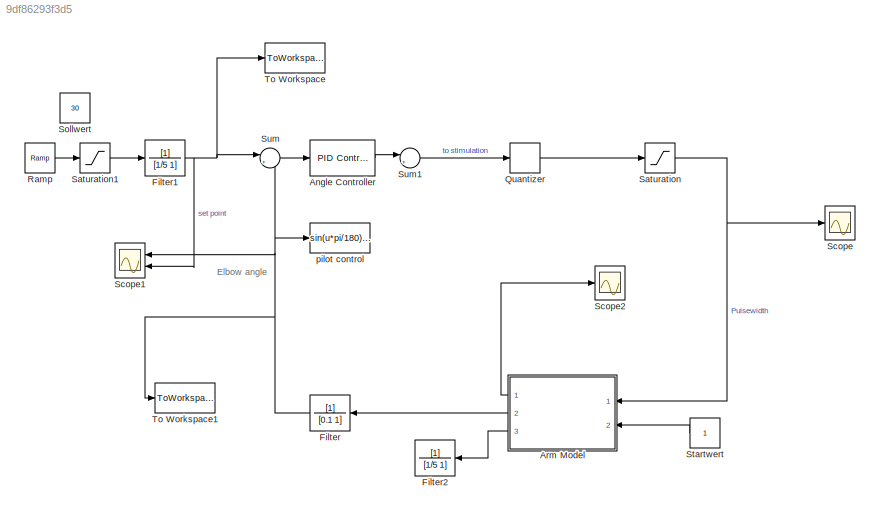
MODEL slx_9df86293f3d5
KIND model
CONFIG AbsTol = auto
CONFIG EnableMultiTasking = off
CONFIG FixedStep = 0.001
CONFIG MaxStep = auto
CONFIG MinStep = 0.0001
CONFIG RelTol = 1e-3
CONFIG SampleTimeConstraint = Unconstrained
CONFIG Solver = ode45
CONFIG SolverName = ode45
CONFIG StartTime = 0.0
CONFIG StopTime = 30
BLOCK [Reference] Angle Controller  REF=simulink/Continuous/PID Controller
  Ports = [1, 1]
  SourceBlock = simulink/Continuous/PID Controller
  SourceType = PID 1dof
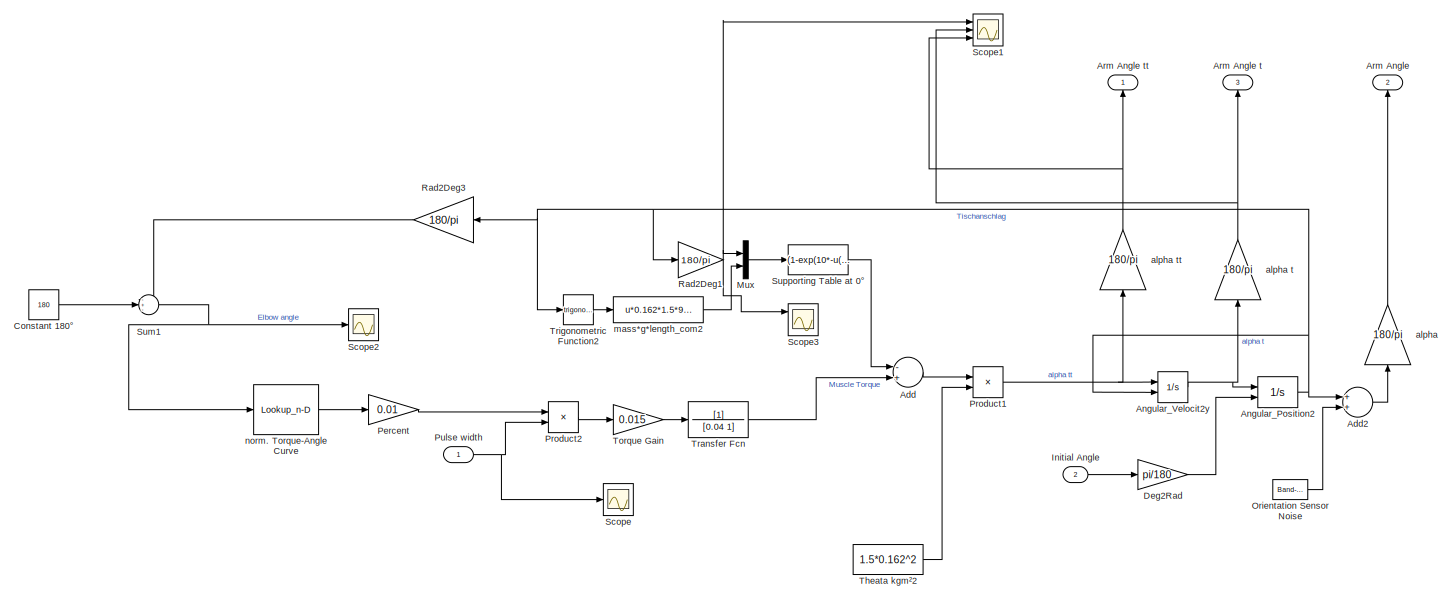
[diagram: Arm Model - part 1/2, full width, top band]
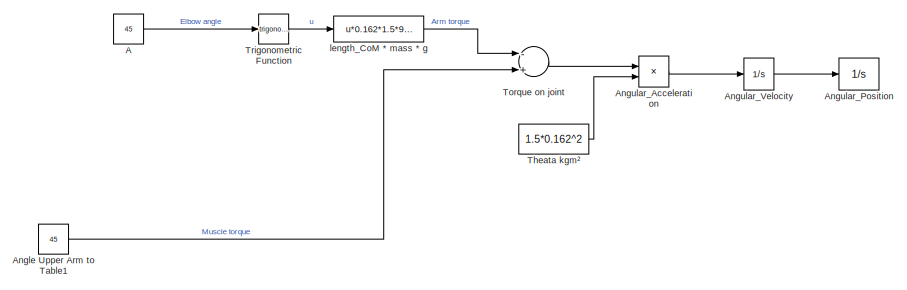
[diagram: Arm Model - part 2/2, bottom center region]
BLOCK [SubSystem] Arm Model
  Ports = [2, 3]
  RequestExecContextInheritance = off
  Variant = off
BLOCK [Constant] Arm Model/A
  Commented = on
  Value = 45
BLOCK [Sum] Arm Model/Add
  InputSameDT = off
  Inputs = -+
  OutDataTypeStr = Inherit: Inherit via internal rule
  Ports = [2, 1]
  SaturateOnIntegerOverflow = off
BLOCK [Sum] Arm Model/Add2
  InputSameDT = off
  OutDataTypeStr = Inherit: Inherit via internal rule
  Ports = [2, 1]
  SaturateOnIntegerOverflow = off
BLOCK [Constant] Arm Model/Angle Upper Arm to Table1
  Commented = on
  Value = 45
BLOCK [Product] Arm Model/Angular_Acceleration
  Commented = on
  InputSameDT = off
  Inputs = */
  OutDataTypeStr = Inherit: Inherit via internal rule
  Ports = [2, 1]
  RndMeth = Floor
  SaturateOnIntegerOverflow = off
BLOCK [Integrator] Arm Model/Angular_Position
  Commented = on
  InitialCondition = 0.5
  LowerSaturationLimit = 0
  Ports = [1, 1]
BLOCK [Integrator] Arm Model/Angular_Position2
  InitialCondition = 45
  InitialConditionSource = external
  LimitOutput = on
  LowerSaturationLimit = 0
  Ports = [2, 1]
  UpperSaturationLimit = 90*pi/180
BLOCK [Integrator] Arm Model/Angular_Velocit2y
  ExternalReset = falling
  Ports = [2, 1]
BLOCK [Integrator] Arm Model/Angular_Velocity
  Commented = on
  Ports = [1, 1]
BLOCK [Outport] Arm Model/Arm Angle
  IconDisplay = Port number
  Port = 2
BLOCK [Outport] Arm Model/Arm Angle t
  IconDisplay = Port number
  Port = 3
BLOCK [Outport] Arm Model/Arm Angle tt
  IconDisplay = Port number
BLOCK [Constant] Arm Model/Constant 180°
  Value = 180
BLOCK [Gain] Arm Model/Deg2Rad
  Gain = pi/180
  OutDataTypeStr = Inherit: Inherit via internal rule
  ParamDataTypeStr = Inherit: Inherit via internal rule
  SaturateOnIntegerOverflow = off
BLOCK [Inport] Arm Model/Initial Angle
  IconDisplay = Port number
  Port = 2
BLOCK [Mux] Arm Model/Mux
  DisplayOption = bar
  Inputs = 2
  Ports = [2, 1]
BLOCK [Reference] Arm Model/Orientation Sensor Noise  REF=simulink/Sources/Band-Limited
White Noise
  Ports = [0, 1]
  SourceBlock = simulink/Sources/Band-Limited\nWhite Noise
  SourceType = Band-Limited White Noise.
BLOCK [Gain] Arm Model/Percent
  Gain = 0.01
  OutDataTypeStr = Inherit: Inherit via internal rule
  ParamDataTypeStr = Inherit: Inherit via internal rule
  SaturateOnIntegerOverflow = off
BLOCK [Product] Arm Model/Product1
  InputSameDT = off
  Inputs = */
  OutDataTypeStr = Inherit: Inherit via internal rule
  Ports = [2, 1]
  RndMeth = Floor
  SaturateOnIntegerOverflow = off
BLOCK [Product] Arm Model/Product2
  InputSameDT = off
  Inputs = **
  OutDataTypeStr = Inherit: Inherit via internal rule
  Ports = [2, 1]
  RndMeth = Floor
  SaturateOnIntegerOverflow = off
BLOCK [Inport] Arm Model/Pulse width
  IconDisplay = Port number
BLOCK [Gain] Arm Model/Rad2Deg1
  Gain = 180/pi
  OutDataTypeStr = Inherit: Inherit via internal rule
  ParamDataTypeStr = Inherit: Inherit via internal rule
  SaturateOnIntegerOverflow = off
BLOCK [Gain] Arm Model/Rad2Deg3
  Gain = 180/pi
  OutDataTypeStr = Inherit: Inherit via internal rule
  ParamDataTypeStr = Inherit: Inherit via internal rule
  SaturateOnIntegerOverflow = off
BLOCK [Scope] Arm Model/Scope
  NumInputPorts = 1
  Ports = [1]
  ScopeSpecificationString = Simulink.scopes.TimeScopeBlockCfg('CurrentConfiguration', extmgr.ConfigurationSet(extmgr.Configuration('Core','General UI',true),extmgr.Configuration('Core','Source UI',true),extmgr.Configuration('Sources','WiredSimulink',true,'DataLoggingVariableName','ScopeData2'),extmgr.Configuration('Visuals','Time Domain',true,'SerializedDisplays',{struct('MinYLimReal','-12.5','MaxYLimReal','112.5','YLabelRea...<+1384ch>
BLOCK [Scope] Arm Model/Scope1
  NumInputPorts = 3
  Ports = [3]
  ScopeSpecificationString = Simulink.scopes.TimeScopeBlockCfg('CurrentConfiguration', extmgr.ConfigurationSet(extmgr.Configuration('Core','General UI',true),extmgr.Configuration('Core','Source UI',true),extmgr.Configuration('Sources','WiredSimulink',true,'DataLoggingVariableName','ScopeData1'),extmgr.Configuration('Visuals','Time Domain',true,'SerializedDisplays',{struct('MinYLimReal','-527.87877','MaxYLimReal','576.58941','...<+1471ch>
BLOCK [Scope] Arm Model/Scope2
  NumInputPorts = 1
  Ports = [1]
  ScopeSpecificationString = Simulink.scopes.TimeScopeBlockCfg('CurrentConfiguration', extmgr.ConfigurationSet(extmgr.Configuration('Core','General UI',true),extmgr.Configuration('Core','Source UI',true),extmgr.Configuration('Sources','WiredSimulink',true,'DataLoggingVariableName','ScopeData4'),extmgr.Configuration('Visuals','Time Domain',true,'SerializedDisplays',{struct('MinYLimReal','89.30288','MaxYLimReal','96.27412','YLa...<+1443ch>
BLOCK [Scope] Arm Model/Scope3
  NumInputPorts = 3
  Ports = [3]
  ScopeSpecificationString = Simulink.scopes.TimeScopeBlockCfg('CurrentConfiguration', extmgr.ConfigurationSet(extmgr.Configuration('Core','General UI',true),extmgr.Configuration('Core','Source UI',true),extmgr.Configuration('Sources','WiredSimulink',true,'DataLoggingVariableName','ScopeData2'),extmgr.Configuration('Visuals','Time Domain',true,'SerializedDisplays',{struct('MinYLimReal','-11.25','MaxYLimReal','101.25','YLabelR...<+1454ch>
BLOCK [Sum] Arm Model/Sum1
  IconShape = round
  InputSameDT = off
  Inputs = -+-
  OutDataTypeStr = Inherit: Inherit via internal rule
  Ports = [3, 1]
  SaturateOnIntegerOverflow = off
BLOCK [Fcn] Arm Model/Supporting Table at 0°
  Expr = (1-exp(10*-u(1)))*u(2)
BLOCK [Constant] Arm Model/Theata kgm²
  Commented = on
  Value = 1.5*0.162^2
BLOCK [Constant] Arm Model/Theata kgm²2
  Value = 1.5*0.162^2
BLOCK [Gain] Arm Model/Torque Gain
  Gain = 0.015
  OutDataTypeStr = Inherit: Inherit via internal rule
  ParamDataTypeStr = Inherit: Inherit via internal rule
  SaturateOnIntegerOverflow = off
BLOCK [Sum] Arm Model/Torque on joint
  Commented = on
  InputSameDT = off
  Inputs = -+
  OutDataTypeStr = Inherit: Inherit via internal rule
  Ports = [2, 1]
  SaturateOnIntegerOverflow = off
BLOCK [TransferFcn] Arm Model/Transfer Fcn
  Denominator = [0.04 1]
BLOCK [Trigonometry] Arm Model/Trigonometric Function
  Commented = on
  Ports = [1, 1]
BLOCK [Trigonometry] Arm Model/Trigonometric Function2
  Ports = [1, 1]
BLOCK [Gain] Arm Model/alpha
  Gain = 180/pi
  OutDataTypeStr = Inherit: Inherit via internal rule
  ParamDataTypeStr = Inherit: Inherit via internal rule
  SaturateOnIntegerOverflow = off
BLOCK [Gain] Arm Model/alpha t
  Gain = 180/pi
  OutDataTypeStr = Inherit: Inherit via internal rule
  ParamDataTypeStr = Inherit: Inherit via internal rule
  SaturateOnIntegerOverflow = off
BLOCK [Gain] Arm Model/alpha tt
  Gain = 180/pi
  OutDataTypeStr = Inherit: Inherit via internal rule
  ParamDataTypeStr = Inherit: Inherit via internal rule
  SaturateOnIntegerOverflow = off
BLOCK [Fcn] Arm Model/length_CoM * mass * g
  Commented = on
  Expr = u*0.162*1.5*9.81
BLOCK [Fcn] Arm Model/mass*g*length_com2
  Expr = u*0.162*1.5*9.81
BLOCK [Lookup_n-D] Arm Model/norm. Torque-Angle Curve
  BreakpointsForDimension1 = [60.1\n;70.1;\n80.2;\n90.2;\n100.2;\n110.2\n;120.3;\n130.3;140.3\n;150.4;\n160.4]
  InternalRulePriority = Speed
  NumberOfTableDimensions = 1
  Ports = [1, 1]
  RndMeth = Simplest
  Table = [18;31;47;60;\n73;\n83\n;87;\n79;\n80;\n81\n;73]
BLOCK [TransferFcn] Filter
  Denominator = [0.1 1]
BLOCK [TransferFcn] Filter1
  Denominator = [1/5 1]
BLOCK [TransferFcn] Filter2
  Denominator = [1/5 1]
BLOCK [Quantizer] Quantizer
  QuantizationInterval = 10
BLOCK [Reference] Ramp  REF=simulink/Sources/Ramp
  Ports = [0, 1]
  SourceBlock = simulink/Sources/Ramp
  SourceType = Ramp
BLOCK [Saturate] Saturation
  InputPortMap = u0
  LowerLimit = 0
  Ports = [1, 1]
  UpperLimit = 500
BLOCK [Saturate] Saturation1
  InputPortMap = u0
  LowerLimit = 0
  Ports = [1, 1]
  UpperLimit = 40
BLOCK [Scope] Scope
  NumInputPorts = 1
  Ports = [1]
  ScopeSpecificationString = Simulink.scopes.TimeScopeBlockCfg('CurrentConfiguration', extmgr.ConfigurationSet(extmgr.Configuration('Core','General UI',true),extmgr.Configuration('Core','Source UI',true),extmgr.Configuration('Sources','WiredSimulink',true),extmgr.Configuration('Visuals','Time Domain',true,'SerializedDisplays',{struct('MinYLimReal','-62.5','MaxYLimReal','562.5','YLabelReal','','MinYLimMag','0.00000','MaxYLimMa...<+1389ch>
BLOCK [Scope] Scope1
  NumInputPorts = 2
  Ports = [2]
  ScopeSpecificationString = Simulink.scopes.TimeScopeBlockCfg('CurrentConfiguration', extmgr.ConfigurationSet(extmgr.Configuration('Core','General UI',true),extmgr.Configuration('Core','Source UI',true),extmgr.Configuration('Sources','WiredSimulink',true,'DataLoggingVariableName','ScopeData1'),extmgr.Configuration('Visuals','Time Domain',true,'SerializedDisplays',{struct('MinYLimReal','-11.09908','MaxYLimReal','98.05009','YL...<+1452ch>
BLOCK [Scope] Scope2
  NumInputPorts = 1
  Ports = [1]
  ScopeSpecificationString = Simulink.scopes.TimeScopeBlockCfg('CurrentConfiguration', extmgr.ConfigurationSet(extmgr.Configuration('Core','General UI',true),extmgr.Configuration('Core','Source UI',true),extmgr.Configuration('Sources','WiredSimulink',true,'DataLoggingVariableName','ScopeData3'),extmgr.Configuration('Visuals','Time Domain',true,'SerializedDisplays',{struct('MinYLimReal','-4171.91664','MaxYLimReal','2858.33141'...<+1465ch>
BLOCK [Constant] Sollwert 
  Value = 30
BLOCK [Constant] Startwert
BLOCK [Sum] Sum
  IconShape = round
  InputSameDT = off
  Inputs = |+-
  OutDataTypeStr = Inherit: Inherit via internal rule
  Ports = [2, 1]
  SaturateOnIntegerOverflow = off
BLOCK [Sum] Sum1
  IconShape = round
  InputSameDT = off
  Inputs = |++
  OutDataTypeStr = Inherit: Inherit via internal rule
  Ports = [2, 1]
  SaturateOnIntegerOverflow = off
BLOCK [ToWorkspace] To Workspace
  FixptAsFi = on
  MaxDataPoints = inf
  Ports = [1]
  SampleTime = -1
  Save2DSignal = 2-D array (concatenate along first dimension)
  VariableName = setpoint
BLOCK [ToWorkspace] To Workspace1
  FixptAsFi = on
  MaxDataPoints = inf
  Ports = [1]
  SampleTime = -1
  Save2DSignal = 2-D array (concatenate along first dimension)
  VariableName = angle
BLOCK [Fcn] pilot control
  Expr = sin(u*pi/180)*0.162*1.5*9.81/0.015*1
ANNOTATION (root): Elbow angle
LINE Angle Controller:1 -> Sum1:1
LINE Arm Model/A:1 -> Arm Model/Trigonometric Function:1
LINE Arm Model/Add2:1 -> Arm Model/alpha:1
LINE Arm Model/Add:1 -> Arm Model/Product1:1
LINE Arm Model/Angle Upper Arm to Table1:1 -> Arm Model/Torque on joint:2
LINE Arm Model/Angular_Acceleration:1 -> Arm Model/Angular_Velocity:1
NET Arm Model/Angular_Position2:1 -> Arm Model/Add2:1, Arm Model/Angular_Velocit2y:2, Arm Model/Rad2Deg1:1, Arm Model/Rad2Deg3:1, Arm Model/Trigonometric Function2:1
NET Arm Model/Angular_Velocit2y:1 -> Arm Model/Angular_Position2:1, Arm Model/alpha t:1
LINE Arm Model/Angular_Velocity:1 -> Arm Model/Angular_Position:1
LINE Arm Model/Constant 180°:1 -> Arm Model/Sum1:2
LINE Arm Model/Deg2Rad:1 -> Arm Model/Angular_Position2:2
LINE Arm Model/Initial Angle:1 -> Arm Model/Deg2Rad:1
LINE Arm Model/Mux:1 -> Arm Model/Supporting Table at 0°:1
LINE Arm Model/Orientation Sensor Noise:1 -> Arm Model/Add2:2
LINE Arm Model/Percent:1 -> Arm Model/Product2:1
NET Arm Model/Product1:1 -> Arm Model/Angular_Velocit2y:1, Arm Model/alpha tt:1
LINE Arm Model/Product2:1 -> Arm Model/Torque Gain:1
NET Arm Model/Pulse width:1 -> Arm Model/Product2:2, Arm Model/Scope:1
NET Arm Model/Rad2Deg1:1 -> Arm Model/Mux:1, Arm Model/Scope1:1, Arm Model/Scope3:1
LINE Arm Model/Rad2Deg3:1 -> Arm Model/Sum1:1
NET Arm Model/Sum1:1 -> Arm Model/Scope2:1, Arm Model/norm. Torque-Angle Curve:1
LINE Arm Model/Supporting Table at 0°:1 -> Arm Model/Add:1
LINE Arm Model/Theata kgm²2:1 -> Arm Model/Product1:2
LINE Arm Model/Theata kgm²:1 -> Arm Model/Angular_Acceleration:2
LINE Arm Model/Torque Gain:1 -> Arm Model/Transfer Fcn:1
LINE Arm Model/Torque on joint:1 -> Arm Model/Angular_Acceleration:1
LINE Arm Model/Transfer Fcn:1 -> Arm Model/Add:2
LINE Arm Model/Trigonometric Function2:1 -> Arm Model/mass*g*length_com2:1
LINE Arm Model/Trigonometric Function:1 -> Arm Model/length_CoM * mass * g:1
NET Arm Model/alpha t:1 -> Arm Model/Arm Angle t:1, Arm Model/Scope1:2
NET Arm Model/alpha tt:1 -> Arm Model/Arm Angle tt:1, Arm Model/Scope1:3
LINE Arm Model/alpha:1 -> Arm Model/Arm Angle:1
LINE Arm Model/length_CoM * mass * g:1 -> Arm Model/Torque on joint:1
LINE Arm Model/mass*g*length_com2:1 -> Arm Model/Mux:2
LINE Arm Model/norm. Torque-Angle Curve:1 -> Arm Model/Percent:1
LINE Arm Model:1 -> Scope2:1
LINE Arm Model:2 -> Filter:1
LINE Arm Model:3 -> Filter2:1
NET Filter1:1 -> Scope1:2, Sum:1, To Workspace:1
NET Filter:1 -> Scope1:1, Sum:2, To Workspace1:1, pilot control:1
LINE Quantizer:1 -> Saturation:1
LINE Ramp:1 -> Saturation1:1
LINE Saturation1:1 -> Filter1:1
NET Saturation:1 -> Arm Model:1, Scope:1
LINE Startwert:1 -> Arm Model:2
LINE Sum1:1 -> Quantizer:1
LINE Sum:1 -> Angle Controller:1
note: NET lines group one-source signal fan-out (src -> all destinations, sorted); 1:1 wires keep LINE
